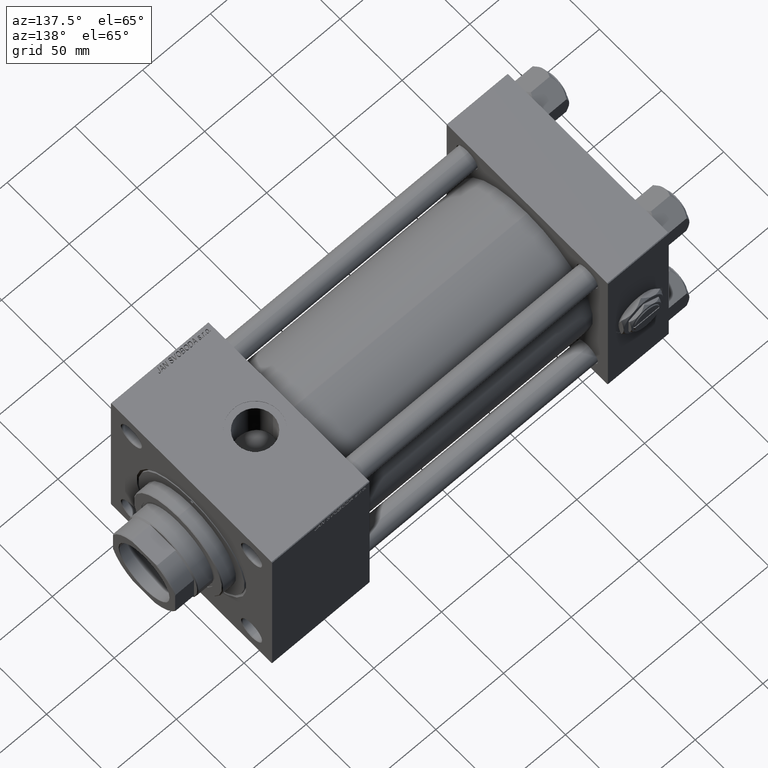
[diagram: clean part render]
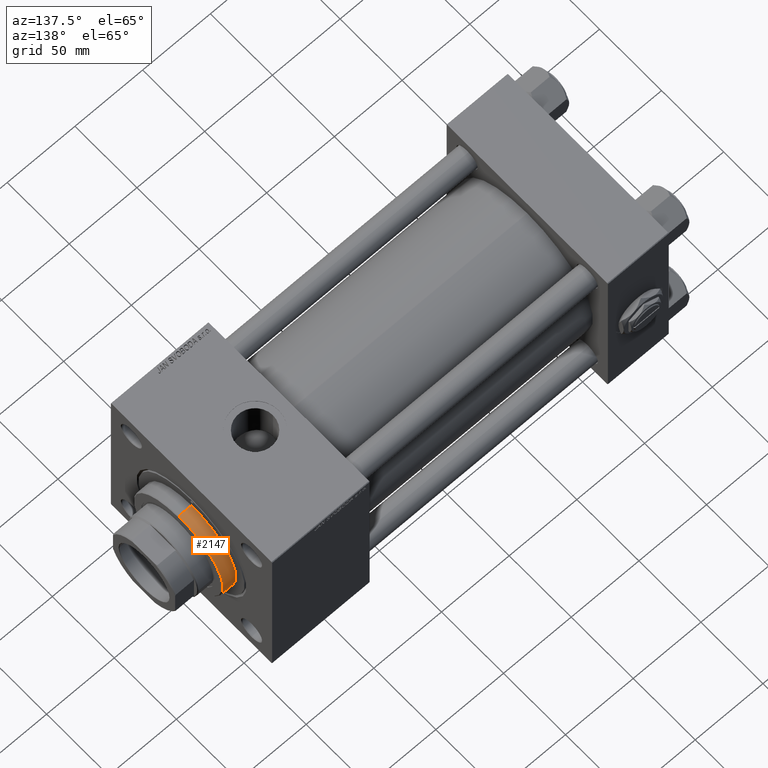
[diagram: same view with one face highlighted and labeled with its STEP entity id]
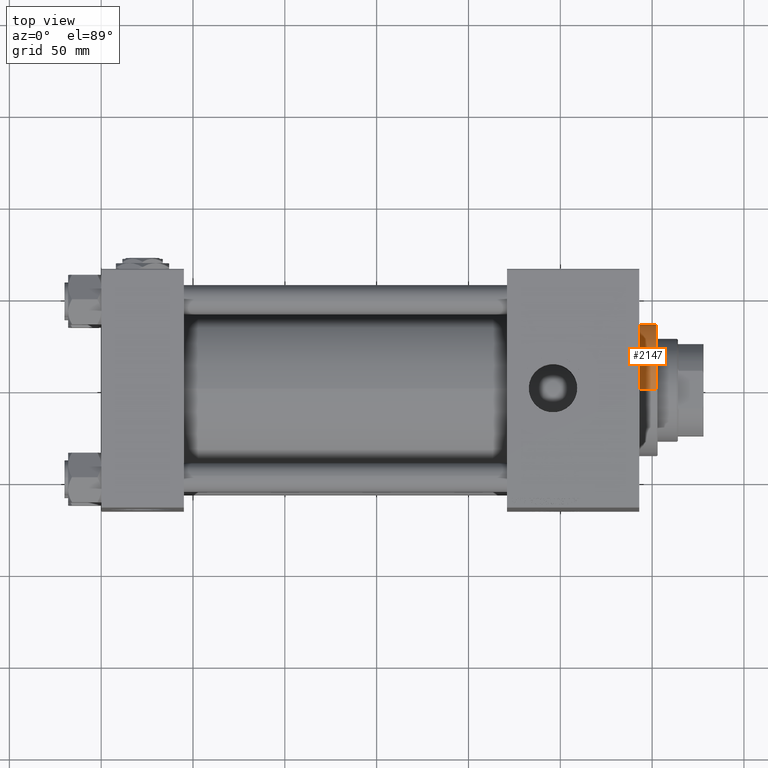
[diagram: same view with one face highlighted and labeled with its STEP entity id]
A machine part, auxiliary view. The second image highlights one B-rep face of the part: STEP entity #2147.
A second angle (top view) of the same face is appended — the face is thin or edge-on in the first view.
In plain terms, the highlighted cylindrical surface (partial cylindrical patch) has radius 36 mm, axis along (-1, -0, -0).
Its self-contained STEP definition (entity closure, byte-faithful):
#1688 = ORIENTED_EDGE ( 'NONE', *, *, #37771, .T. ) ;
#1725 = CARTESIAN_POINT ( 'NONE',  ( -36.00000000000000000, 0.000000000000000000, 38.19999999999998863 ) ) ;
#2048 = CIRCLE ( 'NONE', #31110, 36.00000000000000000 ) ;
#2147 = ADVANCED_FACE ( 'NONE', ( #45964 ), #25078, .T. ) ;
#3700 = VECTOR ( 'NONE', #19678, 1000.000000000000000 ) ;
#3758 = DIRECTION ( 'NONE',  ( 1.000000000000000000, 0.000000000000000000, 0.000000000000000000 ) ) ;
#5309 = ORIENTED_EDGE ( 'NONE', *, *, #16084, .T. ) ;
#5510 = VERTEX_POINT ( 'NONE', #52768 ) ;
#5695 = VECTOR ( 'NONE', #13558, 1000.000000000000000 ) ;
#9346 = EDGE_LOOP ( 'NONE', ( #5309, #18728, #1688, #22003 ) ) ;
#11121 = CIRCLE ( 'NONE', #50438, 36.00000000000000000 ) ;
#11648 = CARTESIAN_POINT ( 'NONE',  ( 36.00000000000000000, 4.408728476930470856E-15, 38.69999999999999574 ) ) ;
#11772 = DIRECTION ( 'NONE',  ( 0.000000000000000000, 0.000000000000000000, -1.000000000000000000 ) ) ;
#13558 = DIRECTION ( 'NONE',  ( -0.000000000000000000, -0.000000000000000000, -1.000000000000000000 ) ) ;
#13809 = DIRECTION ( 'NONE',  ( -0.000000000000000000, -0.000000000000000000, -1.000000000000000000 ) ) ;
#14933 = EDGE_CURVE ( 'NONE', #5510, #15520, #15389, .T. ) ;
#15389 = LINE ( 'NONE', #11648, #3700 ) ;
#15520 = VERTEX_POINT ( 'NONE', #24719 ) ;
#16084 = EDGE_CURVE ( 'NONE', #29807, #5510, #2048, .T. ) ;
#16131 = AXIS2_PLACEMENT_3D ( 'NONE', #49993, #13809, #41675 ) ;
#17833 = LINE ( 'NONE', #22117, #5695 ) ;
#18728 = ORIENTED_EDGE ( 'NONE', *, *, #14933, .T. ) ;
#19678 = DIRECTION ( 'NONE',  ( -0.000000000000000000, -0.000000000000000000, -1.000000000000000000 ) ) ;
#21591 = DIRECTION ( 'NONE',  ( 0.000000000000000000, 0.000000000000000000, 1.000000000000000000 ) ) ;
#22003 = ORIENTED_EDGE ( 'NONE', *, *, #26812, .F. ) ;
#22117 = CARTESIAN_POINT ( 'NONE',  ( -36.00000000000000000, 0.000000000000000000, 38.69999999999999574 ) ) ;
#23307 = CARTESIAN_POINT ( 'NONE',  ( 0.000000000000000000, 0.000000000000000000, 38.19999999999998863 ) ) ;
#24719 = CARTESIAN_POINT ( 'NONE',  ( 36.00000000000000000, 4.408728476930470856E-15, 28.69999999999999929 ) ) ;
#25078 = CYLINDRICAL_SURFACE ( 'NONE', #16131, 36.00000000000000000 ) ;
#26691 = DIRECTION ( 'NONE',  ( 1.000000000000000000, 0.000000000000000000, 0.000000000000000000 ) ) ;
#26812 = EDGE_CURVE ( 'NONE', #29807, #36423, #17833, .T. ) ;
#29807 = VERTEX_POINT ( 'NONE', #1725 ) ;
#31110 = AXIS2_PLACEMENT_3D ( 'NONE', #23307, #11772, #3758 ) ;
#33924 = CARTESIAN_POINT ( 'NONE',  ( 0.000000000000000000, 0.000000000000000000, 28.69999999999999929 ) ) ;
#36423 = VERTEX_POINT ( 'NONE', #42058 ) ;
#37771 = EDGE_CURVE ( 'NONE', #15520, #36423, #11121, .T. ) ;
#41675 = DIRECTION ( 'NONE',  ( -1.000000000000000000, 0.000000000000000000, 0.000000000000000000 ) ) ;
#42058 = CARTESIAN_POINT ( 'NONE',  ( -36.00000000000000000, 0.000000000000000000, 28.69999999999999929 ) ) ;
#45964 = FACE_OUTER_BOUND ( 'NONE', #9346, .T. ) ;
#49993 = CARTESIAN_POINT ( 'NONE',  ( 0.000000000000000000, 0.000000000000000000, 38.69999999999999574 ) ) ;
#50438 = AXIS2_PLACEMENT_3D ( 'NONE', #33924, #21591, #26691 ) ;
#52768 = CARTESIAN_POINT ( 'NONE',  ( 36.00000000000000000, 4.408728476930470856E-15, 38.19999999999998863 ) ) ;